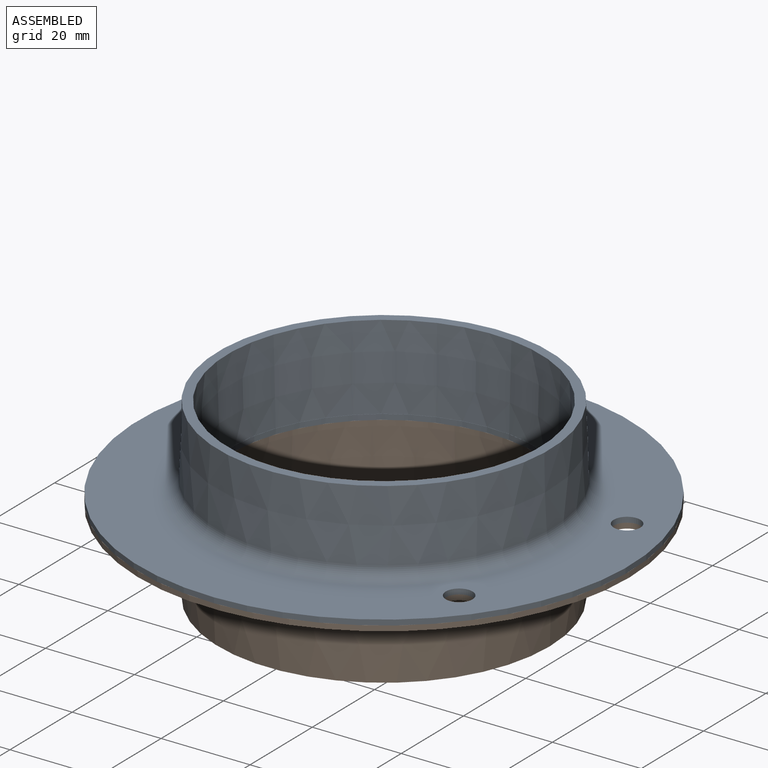
[diagram: assembled view]
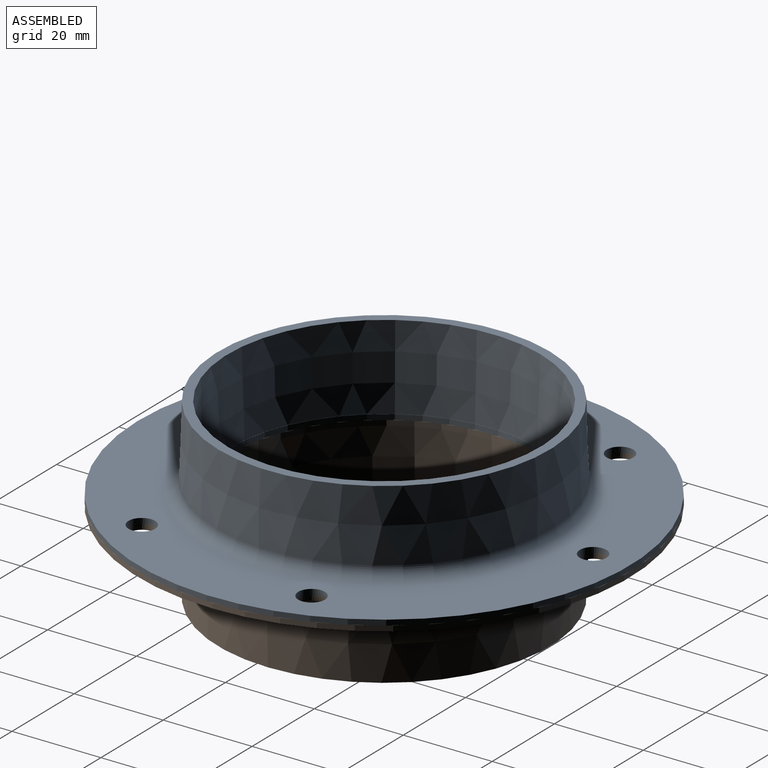
[diagram: assembled view, second angle]
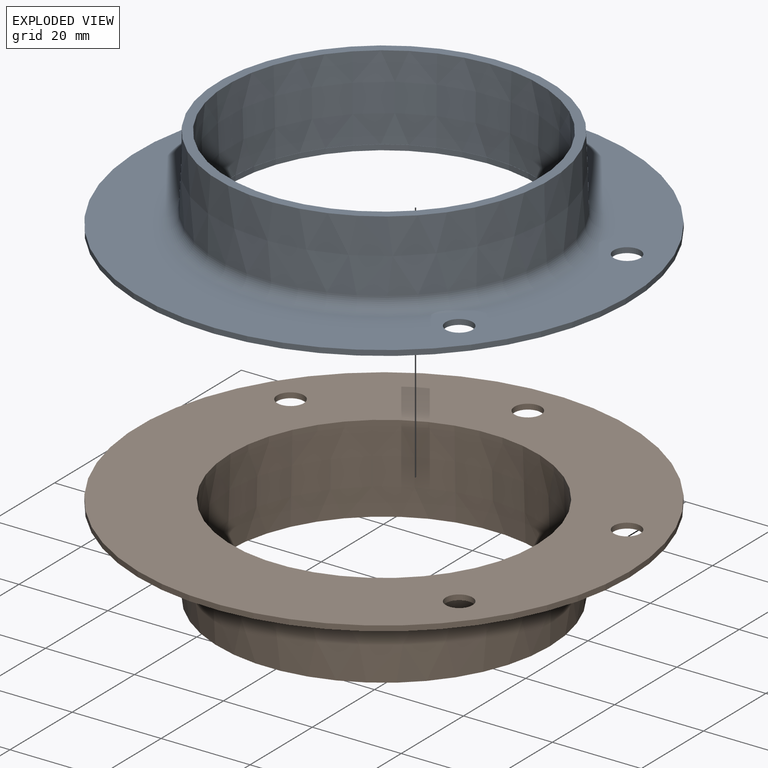
[diagram: exploded view]
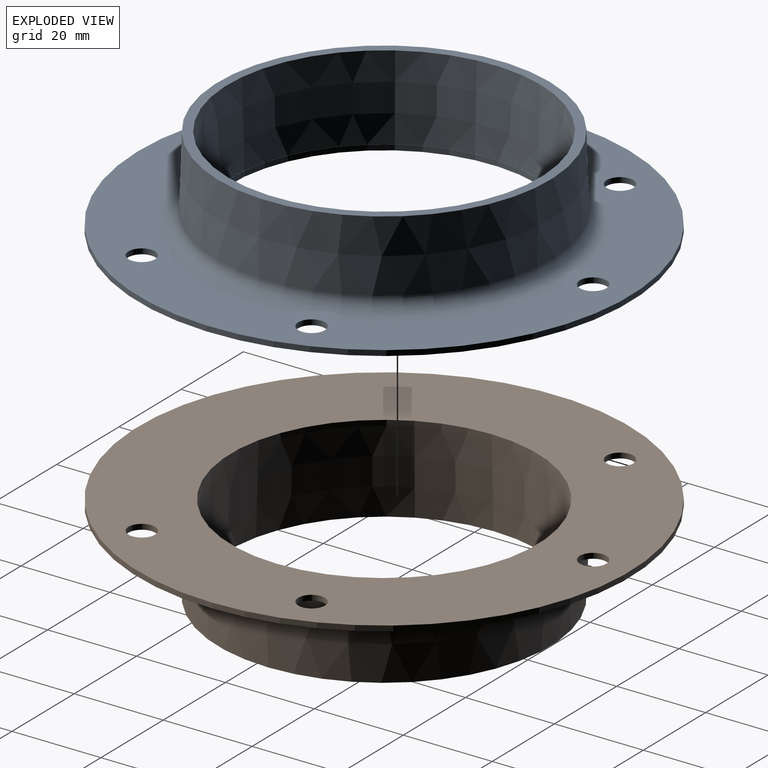
[diagram: exploded view, second angle]
ASSEMBLY  parts=2 mates=2
PART A: 13 faces, bbox 110.5x110.5x20 mm
  f0: plane 69.08x69.08mm, normal (0,0,1), area 9.1mm2, adj f6,f9
  f1: cylinder r=55.23mm len=110.47mm, axis (0,0,-1), area 416.5mm2, adj f7,f8
  f2: cylinder r=3mm len=6mm, axis (0,0,-1), area 22.6mm2, adj f7,f8
  f3: cylinder r=3mm len=6mm, axis (0,0,-1), area 22.6mm2, adj f7,f8
  f4: cylinder r=3mm len=6mm, axis (0,0,-1), area 22.6mm2, adj f7,f8
  f5: cylinder r=3mm len=6mm, axis (0,0,-1), area 22.6mm2, adj f7,f8
  f6: cylinder r=34.5mm len=69mm, axis (0,0,-1), area 260.1mm2, adj f0,f8
  f7: plane 110.47x110.47mm, normal (0,0,1), area 4227.4mm2, adj f1,f2,f3,f4,f5,f12
  f8: plane 110.47x110.47mm, normal (0,0,-1), area 5731.9mm2, adj f1,f2,f3,f4,f5,f6
  f9: cone r=34.5mm half-angle=2deg, axis (0,0,1), area 4121.5mm2, adj f0,f11
  f10: cone r=38mm half-angle=2deg, axis (0,0,-1), area 3757.7mm2, adj f11,f12
  f11: plane 74.6x74.6mm, normal (0,0,1), area 479mm2, adj f9,f10
  f12: torus R=40.86mm, axis (0,0,1), area 1128.2mm2, adj f7,f10
PART B: same geometry as A
PLACE A rot(axis=(0,0,1),108.8deg) t=(31.22,15.56,-14.72)mm
PLACE B rot(axis=(1,0,0),180deg) t=(31.22,15.56,-14.72)mm
MATE revolute B.f6 <-> A.f6  axis (0,0,1) through (31.22,15.56,-14.72)mm
MATE cylindrical A.f5 <-> B.f2  axis (0,0,-1) through (68.19,-13.07,-14.72)mm
